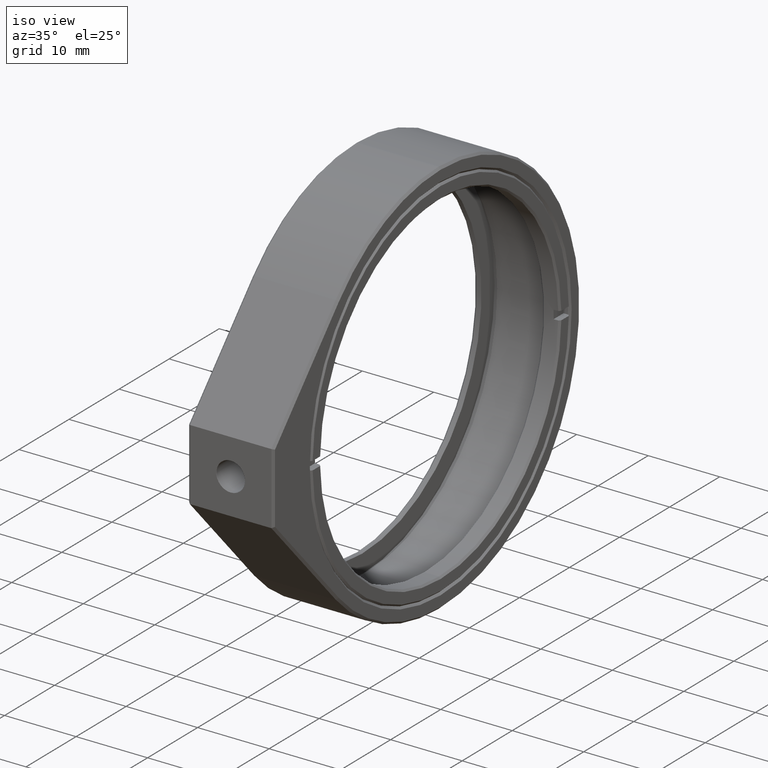
[diagram: clean part render]
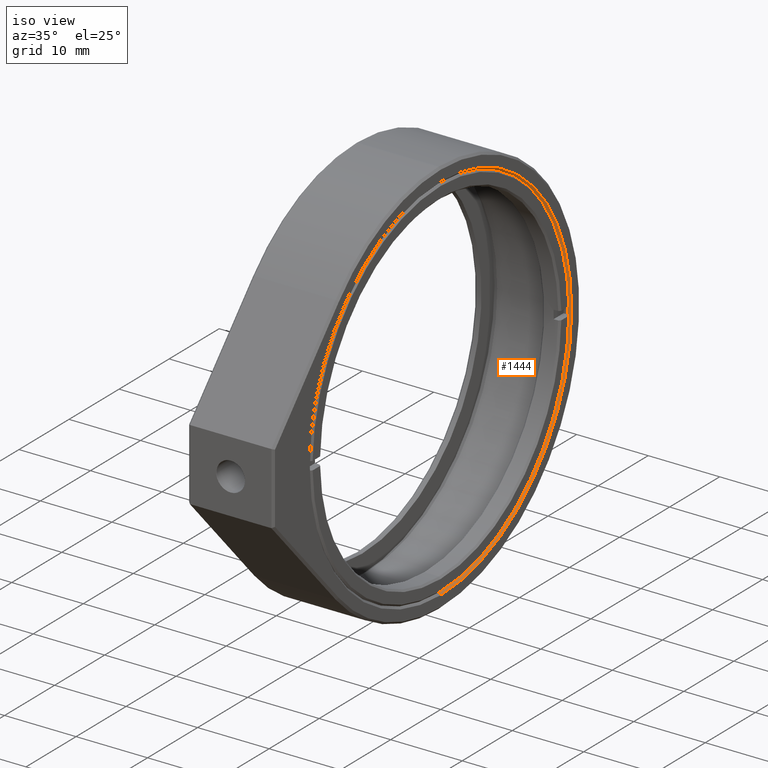
[diagram: same view with one face highlighted and labeled with its STEP entity id]
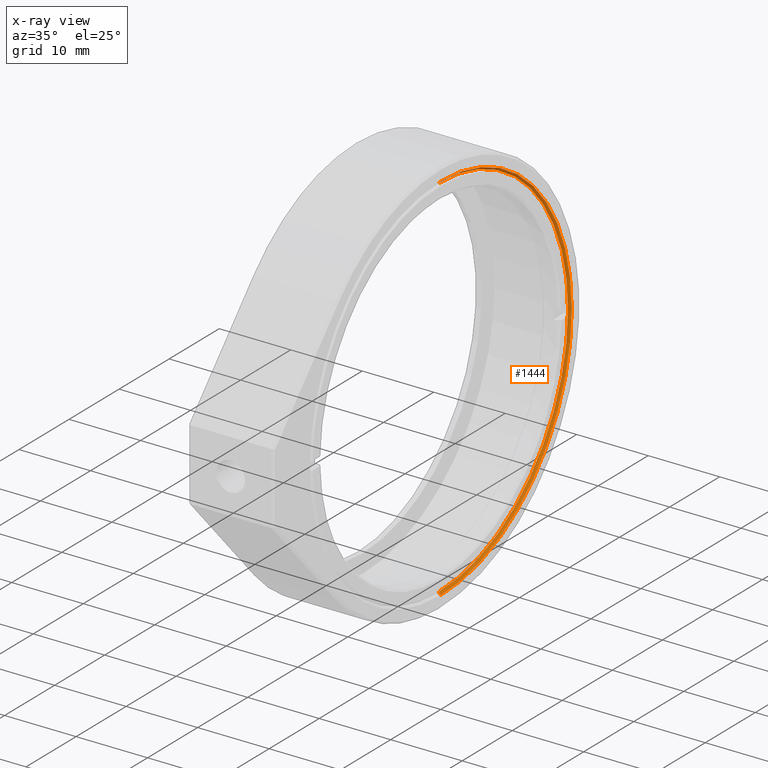
[diagram: x-ray of the same camera — body ghosted, the highlighted face saturated]
A machine part, iso view. The second image highlights one B-rep face of the part: STEP entity #1444.
The next image is the same camera in x-ray: the body ghosted, the highlighted face saturated — about 0% of this face is hidden behind the body in this view.
In plain terms, the highlighted conical surface has half-angle 45 deg.
Its self-contained STEP definition (entity closure, byte-faithful):
#28 = ORIENTED_EDGE ( 'NONE', *, *, #482, .F. ) ;
#52 = LINE ( 'NONE', #1501, #527 ) ;
#63 = DIRECTION ( 'NONE',  ( 1.000000000000000000, 0.0000000000000000000, 0.0000000000000000000 ) ) ;
#64 = LINE ( 'NONE', #478, #1254 ) ;
#75 = ORIENTED_EDGE ( 'NONE', *, *, #673, .F. ) ;
#126 = AXIS2_PLACEMENT_3D ( 'NONE', #1633, #428, #1248 ) ;
#133 = CARTESIAN_POINT ( 'NONE',  ( 5.699999999999927347, 3.165711975795908155E-15, 25.85000000000000497 ) ) ;
#136 = VERTEX_POINT ( 'NONE', #878 ) ;
#184 = AXIS2_PLACEMENT_3D ( 'NONE', #1658, #63, #728 ) ;
#298 = CIRCLE ( 'NONE', #126, 26.15000000000006608 ) ;
#341 = VERTEX_POINT ( 'NONE', #133 ) ;
#362 = DIRECTION ( 'NONE',  ( 1.000000000000000000, 0.0000000000000000000, 0.0000000000000000000 ) ) ;
#428 = DIRECTION ( 'NONE',  ( -1.000000000000000000, -0.0000000000000000000, -0.0000000000000000000 ) ) ;
#460 = CARTESIAN_POINT ( 'NONE',  ( 6.000000000000000000, 3.202451379770336509E-15, 26.15000000000006253 ) ) ;
#478 = CARTESIAN_POINT ( 'NONE',  ( 5.699999999999927347, 3.165711975795908550E-15, 25.85000000000000497 ) ) ;
#482 = EDGE_CURVE ( 'NONE', #622, #1471, #298, .T. ) ;
#519 = CONICAL_SURFACE ( 'NONE', #184, 25.85000000000000497, 0.7853981633974251864 ) ;
#527 = VECTOR ( 'NONE', #1235, 1000.000000000000000 ) ;
#619 = DIRECTION ( 'NONE',  ( 0.0000000000000000000, 0.0000000000000000000, -1.000000000000000000 ) ) ;
#622 = VERTEX_POINT ( 'NONE', #460 ) ;
#673 = EDGE_CURVE ( 'NONE', #341, #622, #64, .T. ) ;
#728 = DIRECTION ( 'NONE',  ( 0.0000000000000000000, 0.0000000000000000000, -1.000000000000000000 ) ) ;
#878 = CARTESIAN_POINT ( 'NONE',  ( 5.699999999999927347, 0.0000000000000000000, -25.85000000000000497 ) ) ;
#921 = CARTESIAN_POINT ( 'NONE',  ( 5.699999999999927347, 0.0000000000000000000, 0.0000000000000000000 ) ) ;
#947 = EDGE_CURVE ( 'NONE', #136, #1471, #52, .T. ) ;
#973 = AXIS2_PLACEMENT_3D ( 'NONE', #921, #362, #619 ) ;
#1017 = CARTESIAN_POINT ( 'NONE',  ( 6.000000000000000000, 0.0000000000000000000, -26.15000000000006253 ) ) ;
#1018 = DIRECTION ( 'NONE',  ( 0.7071067811865638930, 8.659560562354731945E-17, 0.7071067811865311414 ) ) ;
#1212 = EDGE_LOOP ( 'NONE', ( #75, #1438, #1759, #28 ) ) ;
#1235 = DIRECTION ( 'NONE',  ( 0.7071067811865638930, 0.0000000000000000000, -0.7071067811865311414 ) ) ;
#1248 = DIRECTION ( 'NONE',  ( 0.0000000000000000000, 0.0000000000000000000, -1.000000000000000000 ) ) ;
#1254 = VECTOR ( 'NONE', #1018, 1000.000000000000000 ) ;
#1365 = EDGE_CURVE ( 'NONE', #136, #341, #1730, .T. ) ;
#1438 = ORIENTED_EDGE ( 'NONE', *, *, #1365, .F. ) ;
#1444 = ADVANCED_FACE ( 'NONE', ( #1533 ), #519, .F. ) ;
#1471 = VERTEX_POINT ( 'NONE', #1017 ) ;
#1501 = CARTESIAN_POINT ( 'NONE',  ( 5.699999999999927347, 0.0000000000000000000, -25.85000000000000497 ) ) ;
#1533 = FACE_OUTER_BOUND ( 'NONE', #1212, .T. ) ;
#1633 = CARTESIAN_POINT ( 'NONE',  ( 6.000000000000000000, 0.0000000000000000000, 0.0000000000000000000 ) ) ;
#1658 = CARTESIAN_POINT ( 'NONE',  ( 5.699999999999927347, 0.0000000000000000000, 0.0000000000000000000 ) ) ;
#1730 = CIRCLE ( 'NONE', #973, 25.85000000000000497 ) ;
#1759 = ORIENTED_EDGE ( 'NONE', *, *, #947, .T. ) ;